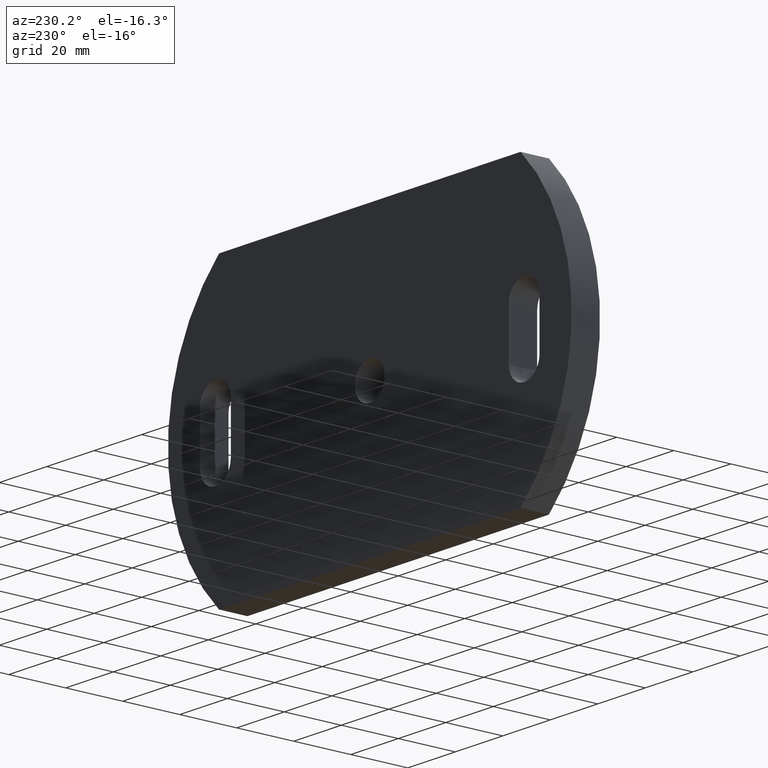
[diagram: clean part render]
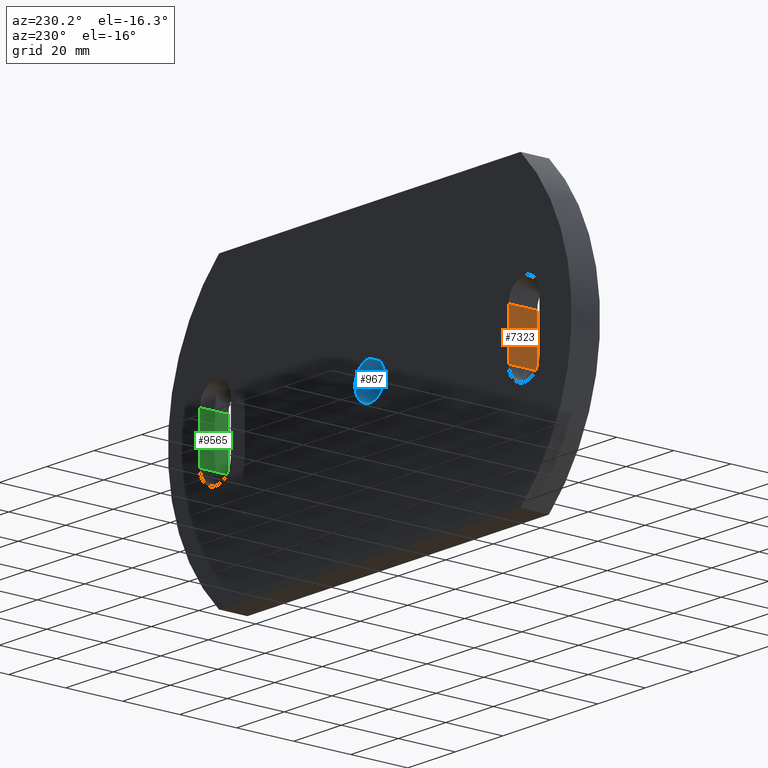
[diagram: same view with three faces highlighted in distinct colors, each labeled with its STEP entity id]
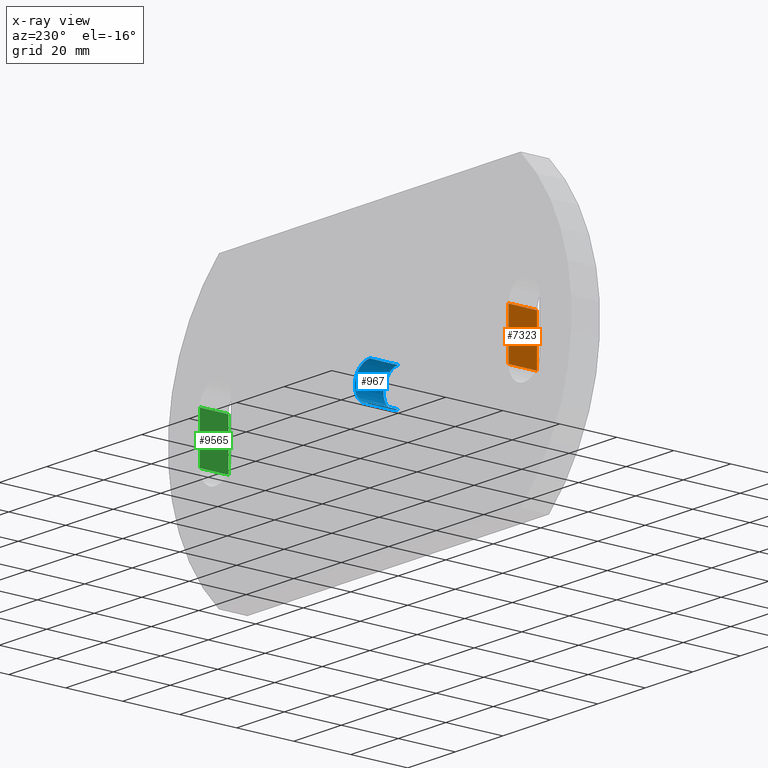
[diagram: x-ray of the same camera — body ghosted, the three highlighted faces saturated]
A machine part, auxiliary view with three faces highlighted in distinct colors.
The next image is the same camera in x-ray (body ghosted, the three faces saturated) — at least one of them is partly hidden behind the body in this view.
Their STEP definitions:

[orange] entity #7323 — the highlighted planar face has unit normal (1, 0, -0).
#233 = VERTEX_POINT ( 'NONE', #1585 ) ;
#389 = CARTESIAN_POINT ( 'NONE',  ( -58.50000000000000700, 0.0000000000000000000, -8.499999999999984000 ) ) ;
#405 = AXIS2_PLACEMENT_3D ( 'NONE', #389, #9492, #3624 ) ;
#779 = CARTESIAN_POINT ( 'NONE',  ( -58.50000000000000700, 0.0000000000000000000, -8.499999999999984000 ) ) ;
#980 = EDGE_CURVE ( 'NONE', #10189, #6928, #7568, .T. ) ;
#1456 = VECTOR ( 'NONE', #1730, 1000.000000000000000 ) ;
#1585 = CARTESIAN_POINT ( 'NONE',  ( -58.50000000000000700, 10.00000000000000000, -8.499999999999984000 ) ) ;
#1677 = EDGE_CURVE ( 'NONE', #10189, #3695, #6904, .T. ) ;
#1730 = DIRECTION ( 'NONE',  ( -0.0000000000000000000, -0.0000000000000000000, -1.000000000000000000 ) ) ;
#2364 = VECTOR ( 'NONE', #5364, 1000.000000000000000 ) ;
#2382 = ORIENTED_EDGE ( 'NONE', *, *, #980, .F. ) ;
#3624 = DIRECTION ( 'NONE',  ( -0.0000000000000000000, 0.0000000000000000000, -1.000000000000000000 ) ) ;
#3695 = VERTEX_POINT ( 'NONE', #4712 ) ;
#3956 = DIRECTION ( 'NONE',  ( -0.0000000000000000000, 1.000000000000000000, -0.0000000000000000000 ) ) ;
#4028 = EDGE_CURVE ( 'NONE', #6928, #233, #8409, .T. ) ;
#4059 = VECTOR ( 'NONE', #8704, 1000.000000000000000 ) ;
#4684 = LINE ( 'NONE', #8168, #2364 ) ;
#4712 = CARTESIAN_POINT ( 'NONE',  ( -58.50000000000000700, 10.00000000000000000, 8.499999999999984000 ) ) ;
#5275 = ORIENTED_EDGE ( 'NONE', *, *, #9160, .T. ) ;
#5364 = DIRECTION ( 'NONE',  ( -0.0000000000000000000, -0.0000000000000000000, -1.000000000000000000 ) ) ;
#5806 = ORIENTED_EDGE ( 'NONE', *, *, #1677, .T. ) ;
#6108 = ORIENTED_EDGE ( 'NONE', *, *, #4028, .F. ) ;
#6904 = LINE ( 'NONE', #8847, #4059 ) ;
#6913 = FACE_OUTER_BOUND ( 'NONE', #9192, .T. ) ;
#6928 = VERTEX_POINT ( 'NONE', #779 ) ;
#7323 = ADVANCED_FACE ( 'NONE', ( #6913 ), #8692, .F. ) ;
#7568 = LINE ( 'NONE', #8363, #1456 ) ;
#8168 = CARTESIAN_POINT ( 'NONE',  ( -58.50000000000000700, 10.00000000000000000, -8.499999999999984000 ) ) ;
#8292 = VECTOR ( 'NONE', #3956, 1000.000000000000000 ) ;
#8363 = CARTESIAN_POINT ( 'NONE',  ( -58.50000000000000700, 0.0000000000000000000, -8.499999999999984000 ) ) ;
#8409 = LINE ( 'NONE', #10570, #8292 ) ;
#8692 = PLANE ( 'NONE',  #405 ) ;
#8704 = DIRECTION ( 'NONE',  ( -0.0000000000000000000, 1.000000000000000000, -0.0000000000000000000 ) ) ;
#8847 = CARTESIAN_POINT ( 'NONE',  ( -58.50000000000000700, 0.0000000000000000000, 8.499999999999984000 ) ) ;
#9160 = EDGE_CURVE ( 'NONE', #3695, #233, #4684, .T. ) ;
#9192 = EDGE_LOOP ( 'NONE', ( #5275, #6108, #2382, #5806 ) ) ;
#9492 = DIRECTION ( 'NONE',  ( 1.000000000000000000, 0.0000000000000000000, -0.0000000000000000000 ) ) ;
#10189 = VERTEX_POINT ( 'NONE', #10428 ) ;
#10428 = CARTESIAN_POINT ( 'NONE',  ( -58.50000000000000700, 0.0000000000000000000, 8.499999999999984000 ) ) ;
#10570 = CARTESIAN_POINT ( 'NONE',  ( -58.50000000000000700, 0.0000000000000000000, -8.499999999999984000 ) ) ;

[blue] entity #967 — the highlighted cylindrical surface (edge-blend (fillet) strip) has radius 6.25 mm, axis along (-0, 1, -0).
#657 = VERTEX_POINT ( 'NONE', #1112 ) ;
#827 = VERTEX_POINT ( 'NONE', #8258 ) ;
#967 = ADVANCED_FACE ( 'NONE', ( #1710 ), #10022, .F. ) ;
#1112 = CARTESIAN_POINT ( 'NONE',  ( 0.0000000000000000000, 0.0000000000000000000, 6.250000000000000000 ) ) ;
#1710 = FACE_OUTER_BOUND ( 'NONE', #3279, .T. ) ;
#2559 = VERTEX_POINT ( 'NONE', #3081 ) ;
#2574 = AXIS2_PLACEMENT_3D ( 'NONE', #10045, #2596, #7590 ) ;
#2596 = DIRECTION ( 'NONE',  ( 0.0000000000000000000, 1.000000000000000000, 0.0000000000000000000 ) ) ;
#2717 = CARTESIAN_POINT ( 'NONE',  ( 7.654042494670957600E-016, 0.0000000000000000000, -6.250000000000000000 ) ) ;
#3081 = CARTESIAN_POINT ( 'NONE',  ( 7.654042494670957600E-016, 0.0000000000000000000, -6.250000000000000000 ) ) ;
#3219 = ORIENTED_EDGE ( 'NONE', *, *, #7711, .F. ) ;
#3278 = LINE ( 'NONE', #2717, #9638 ) ;
#3279 = EDGE_LOOP ( 'NONE', ( #3219, #6277, #5764, #7624 ) ) ;
#3355 = EDGE_CURVE ( 'NONE', #657, #827, #9191, .T. ) ;
#3780 = CIRCLE ( 'NONE', #7617, 6.250000000000000000 ) ;
#4141 = CARTESIAN_POINT ( 'NONE',  ( 0.0000000000000000000, 0.0000000000000000000, 0.0000000000000000000 ) ) ;
#4253 = CARTESIAN_POINT ( 'NONE',  ( 0.0000000000000000000, 10.00000000000000000, 0.0000000000000000000 ) ) ;
#4272 = DIRECTION ( 'NONE',  ( -0.0000000000000000000, 1.000000000000000000, -0.0000000000000000000 ) ) ;
#4616 = EDGE_CURVE ( 'NONE', #657, #2559, #6833, .T. ) ;
#4919 = DIRECTION ( 'NONE',  ( -0.0000000000000000000, 1.000000000000000000, -0.0000000000000000000 ) ) ;
#5051 = DIRECTION ( 'NONE',  ( 0.0000000000000000000, 0.0000000000000000000, 1.000000000000000000 ) ) ;
#5135 = VECTOR ( 'NONE', #4919, 1000.000000000000000 ) ;
#5359 = VERTEX_POINT ( 'NONE', #8512 ) ;
#5764 = ORIENTED_EDGE ( 'NONE', *, *, #3355, .T. ) ;
#6277 = ORIENTED_EDGE ( 'NONE', *, *, #4616, .F. ) ;
#6613 = AXIS2_PLACEMENT_3D ( 'NONE', #4141, #4272, #5051 ) ;
#6810 = DIRECTION ( 'NONE',  ( -0.0000000000000000000, 1.000000000000000000, -0.0000000000000000000 ) ) ;
#6833 = CIRCLE ( 'NONE', #2574, 6.250000000000000000 ) ;
#7590 = DIRECTION ( 'NONE',  ( 0.0000000000000000000, 0.0000000000000000000, 1.000000000000000000 ) ) ;
#7617 = AXIS2_PLACEMENT_3D ( 'NONE', #4253, #10082, #9353 ) ;
#7624 = ORIENTED_EDGE ( 'NONE', *, *, #9409, .T. ) ;
#7711 = EDGE_CURVE ( 'NONE', #2559, #5359, #3278, .T. ) ;
#8258 = CARTESIAN_POINT ( 'NONE',  ( 0.0000000000000000000, 10.00000000000000000, 6.250000000000000000 ) ) ;
#8512 = CARTESIAN_POINT ( 'NONE',  ( 7.654042494670957600E-016, 10.00000000000000000, -6.250000000000000000 ) ) ;
#9191 = LINE ( 'NONE', #9896, #5135 ) ;
#9353 = DIRECTION ( 'NONE',  ( 0.0000000000000000000, 0.0000000000000000000, 1.000000000000000000 ) ) ;
#9409 = EDGE_CURVE ( 'NONE', #827, #5359, #3780, .T. ) ;
#9638 = VECTOR ( 'NONE', #6810, 1000.000000000000000 ) ;
#9896 = CARTESIAN_POINT ( 'NONE',  ( 0.0000000000000000000, 0.0000000000000000000, 6.250000000000000000 ) ) ;
#10022 = CYLINDRICAL_SURFACE ( 'NONE', #6613, 6.250000000000000000 ) ;
#10045 = CARTESIAN_POINT ( 'NONE',  ( 0.0000000000000000000, 0.0000000000000000000, 0.0000000000000000000 ) ) ;
#10082 = DIRECTION ( 'NONE',  ( 0.0000000000000000000, 1.000000000000000000, 0.0000000000000000000 ) ) ;

[green] entity #9565 — the highlighted planar face has unit normal (1, 0, -0).
#255 = DIRECTION ( 'NONE',  ( -0.0000000000000000000, -0.0000000000000000000, -1.000000000000000000 ) ) ;
#368 = ORIENTED_EDGE ( 'NONE', *, *, #10065, .T. ) ;
#438 = CARTESIAN_POINT ( 'NONE',  ( 71.50000000000000000, 0.0000000000000000000, -8.500000000000010700 ) ) ;
#647 = CARTESIAN_POINT ( 'NONE',  ( 71.50000000000000000, 0.0000000000000000000, -8.500000000000010700 ) ) ;
#1440 = VECTOR ( 'NONE', #255, 1000.000000000000000 ) ;
#1611 = DIRECTION ( 'NONE',  ( -0.0000000000000000000, -0.0000000000000000000, -1.000000000000000000 ) ) ;
#1712 = EDGE_CURVE ( 'NONE', #3899, #3579, #9124, .T. ) ;
#2146 = DIRECTION ( 'NONE',  ( 1.000000000000000000, 0.0000000000000000000, -0.0000000000000000000 ) ) ;
#2179 = CARTESIAN_POINT ( 'NONE',  ( 71.50000000000000000, 0.0000000000000000000, -8.500000000000010700 ) ) ;
#2813 = ORIENTED_EDGE ( 'NONE', *, *, #4903, .F. ) ;
#3579 = VERTEX_POINT ( 'NONE', #2179 ) ;
#3899 = VERTEX_POINT ( 'NONE', #5904 ) ;
#3965 = CARTESIAN_POINT ( 'NONE',  ( 71.50000000000000000, 0.0000000000000000000, 8.500000000000010700 ) ) ;
#3981 = VERTEX_POINT ( 'NONE', #7981 ) ;
#4742 = DIRECTION ( 'NONE',  ( -0.0000000000000000000, 1.000000000000000000, -0.0000000000000000000 ) ) ;
#4745 = CARTESIAN_POINT ( 'NONE',  ( 71.50000000000000000, 10.00000000000000000, -8.500000000000010700 ) ) ;
#4875 = CARTESIAN_POINT ( 'NONE',  ( 71.50000000000000000, 0.0000000000000000000, -8.500000000000010700 ) ) ;
#4903 = EDGE_CURVE ( 'NONE', #3579, #9792, #9055, .T. ) ;
#5053 = CARTESIAN_POINT ( 'NONE',  ( 71.50000000000000000, 10.00000000000000000, -8.500000000000010700 ) ) ;
#5448 = ORIENTED_EDGE ( 'NONE', *, *, #8599, .T. ) ;
#5540 = PLANE ( 'NONE',  #10372 ) ;
#5904 = CARTESIAN_POINT ( 'NONE',  ( 71.50000000000000000, 0.0000000000000000000, 8.500000000000010700 ) ) ;
#6024 = EDGE_LOOP ( 'NONE', ( #5448, #2813, #7975, #368 ) ) ;
#7015 = VECTOR ( 'NONE', #4742, 1000.000000000000000 ) ;
#7667 = LINE ( 'NONE', #3965, #7015 ) ;
#7962 = DIRECTION ( 'NONE',  ( -0.0000000000000000000, 0.0000000000000000000, -1.000000000000000000 ) ) ;
#7975 = ORIENTED_EDGE ( 'NONE', *, *, #1712, .F. ) ;
#7981 = CARTESIAN_POINT ( 'NONE',  ( 71.50000000000000000, 10.00000000000000000, 8.500000000000010700 ) ) ;
#8085 = VECTOR ( 'NONE', #1611, 1000.000000000000000 ) ;
#8599 = EDGE_CURVE ( 'NONE', #3981, #9792, #8997, .T. ) ;
#8799 = VECTOR ( 'NONE', #10581, 1000.000000000000000 ) ;
#8995 = FACE_OUTER_BOUND ( 'NONE', #6024, .T. ) ;
#8997 = LINE ( 'NONE', #4745, #1440 ) ;
#9055 = LINE ( 'NONE', #4875, #8799 ) ;
#9124 = LINE ( 'NONE', #647, #8085 ) ;
#9565 = ADVANCED_FACE ( 'NONE', ( #8995 ), #5540, .F. ) ;
#9792 = VERTEX_POINT ( 'NONE', #5053 ) ;
#10065 = EDGE_CURVE ( 'NONE', #3899, #3981, #7667, .T. ) ;
#10372 = AXIS2_PLACEMENT_3D ( 'NONE', #438, #2146, #7962 ) ;
#10581 = DIRECTION ( 'NONE',  ( -0.0000000000000000000, 1.000000000000000000, -0.0000000000000000000 ) ) ;